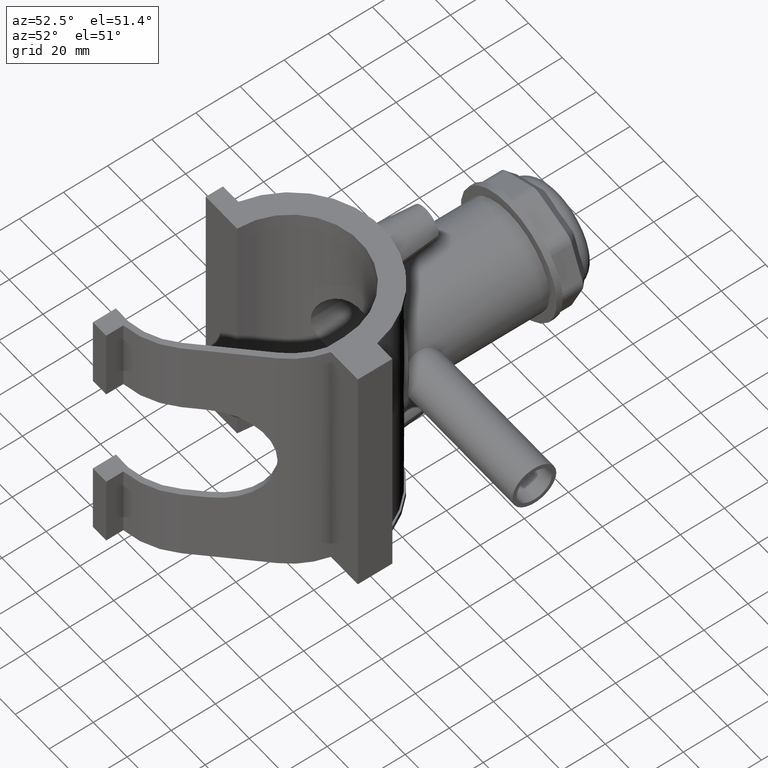
[diagram: clean part render]
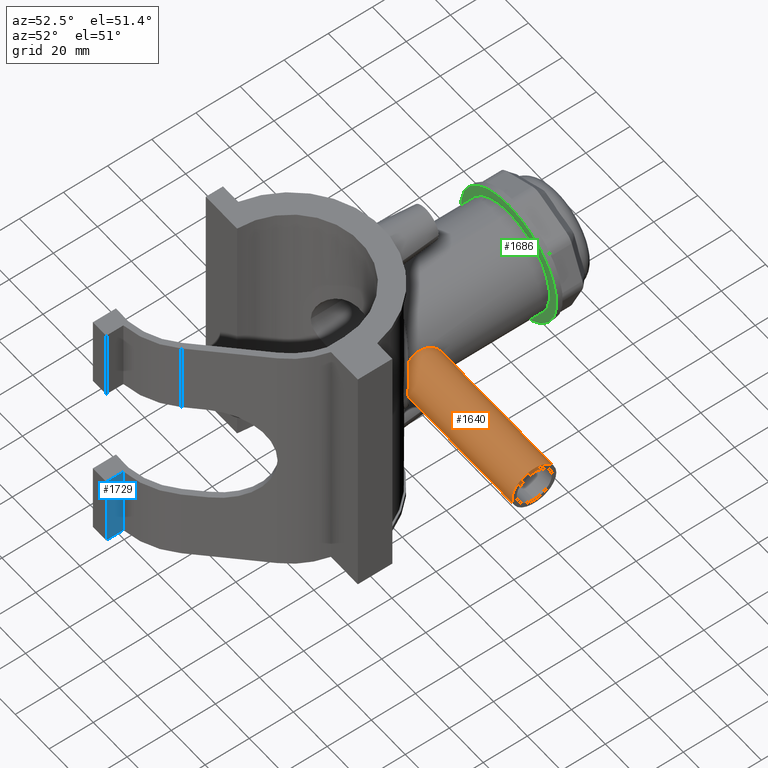
[diagram: same view with three faces highlighted in distinct colors, each labeled with its STEP entity id]
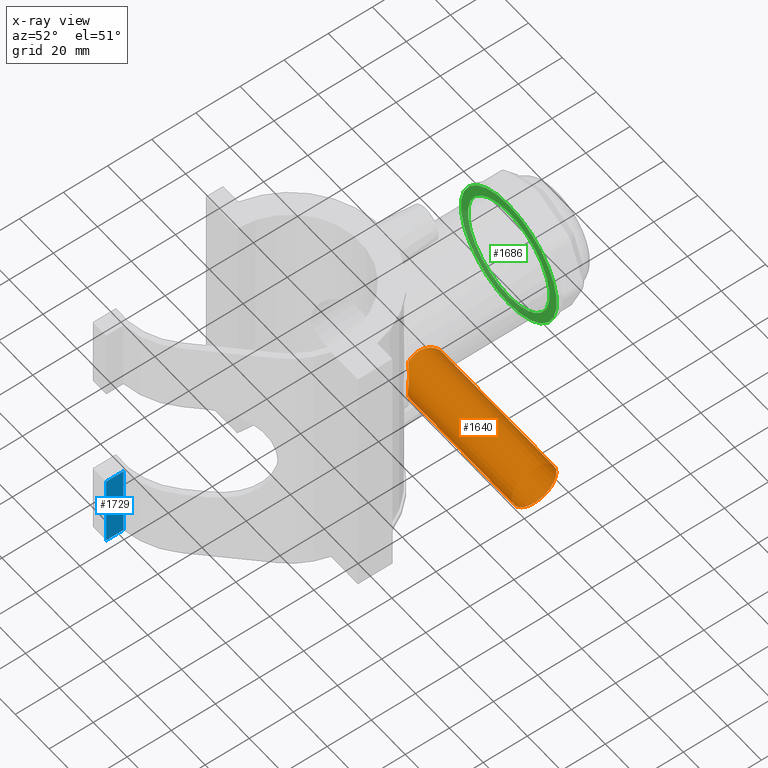
[diagram: x-ray of the same camera — body ghosted, the three highlighted faces saturated]
A machine part, auxiliary view with three faces highlighted in distinct colors.
The next image is the same camera in x-ray (body ghosted, the three faces saturated) — at least one of them is partly hidden behind the body in this view.
Their STEP definitions:

[orange] entity #1640 — the highlighted cylindrical surface (bore or boss wall) has radius 10 mm, axis along (1, 0, 0).
#380=CIRCLE('',#1751,10.);
#455=FACE_BOUND('',#589,.T.);
#480=FACE_OUTER_BOUND('',#588,.T.);
#588=EDGE_LOOP('',(#1137));
#589=EDGE_LOOP('',(#1138,#1139,#1140,#1141,#1142));
#714=B_SPLINE_CURVE_WITH_KNOTS('',3,(#2539,#2540,#2541,#2542,#2543,#2544,
#2545,#2546),.UNSPECIFIED.,.F.,.F.,(4,2,2,4),(2.6953214263511,2.99223385314256,
3.4071353460246,3.51488436503464),.UNSPECIFIED.);
#715=B_SPLINE_CURVE_WITH_KNOTS('',3,(#2548,#2549,#2550,#2551,#2552,#2553,
#2554,#2555,#2556,#2557,#2558,#2559,#2560,#2561,#2562,#2563,#2564,#2565),
 .UNSPECIFIED.,.F.,.F.,(4,2,2,2,2,2,2,2,4),(-0.252878895945213,-0.25283561976998,
-0.251909426429065,-0.250720489910901,-0.248772582027644,-0.238302451986015,
-0.094383935910594,-0.00637806346000648,0.),.UNSPECIFIED.);
#716=B_SPLINE_CURVE_WITH_KNOTS('',3,(#2567,#2568,#2569,#2570,#2571,#2572,
#2573,#2574,#2575,#2576,#2577,#2578,#2579,#2580,#2581,#2582),
 .UNSPECIFIED.,.F.,.F.,(4,2,2,2,2,2,2,4),(-0.470513911661625,-0.392260591676174,
-0.320047684020964,-0.275198712266041,-0.260640046189839,-0.255442674614148,
-0.253840698127374,-0.252878895945213),.UNSPECIFIED.);
#717=B_SPLINE_CURVE_WITH_KNOTS('',3,(#2584,#2585,#2586,#2587,#2588,#2589,
#2590,#2591),.UNSPECIFIED.,.F.,.F.,(4,2,2,4),(1.1369554596361,1.24470447864614,
1.65960597152818,1.95651839831435),.UNSPECIFIED.);
#718=B_SPLINE_CURVE_WITH_KNOTS('',3,(#2592,#2593,#2594,#2595,#2596,#2597,
#2598,#2599,#2600,#2601,#2602,#2603,#2604,#2605,#2606,#2607,#2608,#2609,
#2610,#2611,#2612,#2613,#2614,#2615,#2616,#2617,#2618),.UNSPECIFIED.,.F.,
 .F.,(4,2,2,2,2,2,2,2,2,2,3,2,4),(2.50467437356502,2.67206665897414,3.05404960074397,
3.43603254251379,3.81801548428362,4.19954494269978,4.58107440111595,4.96260385953212,
5.34413331794829,5.72611625971811,6.10809920148794,6.49008214325776,6.65747442866689),
 .UNSPECIFIED.);
#737=VERTEX_POINT('',#2535);
#738=VERTEX_POINT('',#2537);
#739=VERTEX_POINT('',#2538);
#740=VERTEX_POINT('',#2547);
#741=VERTEX_POINT('',#2566);
#742=VERTEX_POINT('',#2583);
#897=EDGE_CURVE('',#737,#737,#380,.T.);
#898=EDGE_CURVE('',#738,#739,#714,.T.);
#899=EDGE_CURVE('',#740,#738,#715,.T.);
#900=EDGE_CURVE('',#741,#740,#716,.T.);
#901=EDGE_CURVE('',#742,#741,#717,.T.);
#902=EDGE_CURVE('',#739,#742,#718,.T.);
#1137=ORIENTED_EDGE('',*,*,#897,.F.);
#1138=ORIENTED_EDGE('',*,*,#898,.F.);
#1139=ORIENTED_EDGE('',*,*,#899,.F.);
#1140=ORIENTED_EDGE('',*,*,#900,.F.);
#1141=ORIENTED_EDGE('',*,*,#901,.F.);
#1142=ORIENTED_EDGE('',*,*,#902,.F.);
#1609=CYLINDRICAL_SURFACE('',#1750,10.);
#1640=ADVANCED_FACE('',(#480,#455),#1609,.T.);
#1750=AXIS2_PLACEMENT_3D('',#2534,#1935,#1936);
#1751=AXIS2_PLACEMENT_3D('',#2536,#1937,#1938);
#1935=DIRECTION('center_axis',(1.,0.,0.));
#1936=DIRECTION('ref_axis',(0.,1.,0.));
#1937=DIRECTION('center_axis',(1.,0.,0.));
#1938=DIRECTION('ref_axis',(0.,0.,-1.));
#2534=CARTESIAN_POINT('Origin',(45.,41.5,0.));
#2535=CARTESIAN_POINT('',(90.,51.5,0.));
#2536=CARTESIAN_POINT('Origin',(90.,41.5,0.));
#2537=CARTESIAN_POINT('',(27.8940892062413,32.1816334475778,3.62878006976187));
#2538=CARTESIAN_POINT('',(22.5772091261817,36.1110422457267,8.42372449232865));
#2539=CARTESIAN_POINT('Ctrl Pts',(27.8940892062411,32.1816334475779,3.62878006976178));
#2540=CARTESIAN_POINT('Ctrl Pts',(27.4913798402836,32.5306900296965,4.52512460351329));
#2541=CARTESIAN_POINT('Ctrl Pts',(26.9395014132135,32.9936047097587,5.31644204878545));
#2542=CARTESIAN_POINT('Ctrl Pts',(25.5086707603174,34.1199656057952,6.837560737836));
#2543=CARTESIAN_POINT('Ctrl Pts',(24.5297050575093,34.8385180067351,7.51114498722243));
#2544=CARTESIAN_POINT('Ctrl Pts',(23.1621436021298,35.7402699399824,8.17795620432497));
#2545=CARTESIAN_POINT('Ctrl Pts',(22.8729725056315,35.9261261853077,8.30542707666742));
#2546=CARTESIAN_POINT('Ctrl Pts',(22.5772091261817,36.1110422457267,8.42372449232866));
#2547=CARTESIAN_POINT('',(28.349993486826,31.5000011641631,-0.00482527318278247));
#2548=CARTESIAN_POINT('Ctrl Pts',(28.349993486826,31.5000011641631,-0.00482527318278359));
#2549=CARTESIAN_POINT('Ctrl Pts',(28.3499935325212,31.5000010357335,-0.00455911281804252));
#2550=CARTESIAN_POINT('Ctrl Pts',(28.3499935744356,31.50000091793,-0.00429295246045263));
#2551=CARTESIAN_POINT('Ctrl Pts',(28.3499944287002,31.4999985169536,0.00166955101374886));
#2552=CARTESIAN_POINT('Ctrl Pts',(28.349993513088,31.5000010904095,0.00736590205134212));
#2553=CARTESIAN_POINT('Ctrl Pts',(28.3499874671916,31.5000180825927,0.0203745195788972));
#2554=CARTESIAN_POINT('Ctrl Pts',(28.3499812149854,31.5000356545329,0.0276867986141444));
#2555=CARTESIAN_POINT('Ctrl Pts',(28.3499571878352,31.5001031762046,0.0469791191617809));
#2556=CARTESIAN_POINT('Ctrl Pts',(28.3499346052053,31.5001666344168,0.0589591730210831));
#2557=CARTESIAN_POINT('Ctrl Pts',(28.3497417364125,31.5007084246473,0.135331349941041));
#2558=CARTESIAN_POINT('Ctrl Pts',(28.3493578390324,31.5017873904002,0.199726888086273));
#2559=CARTESIAN_POINT('Ctrl Pts',(28.340371337679,31.5268629325304,1.14888321426396));
#2560=CARTESIAN_POINT('Ctrl Pts',(28.2939989505415,31.6667044433242,1.93970749489138));
#2561=CARTESIAN_POINT('Ctrl Pts',(28.114921246861,31.9488224324818,2.99091647155948));
#2562=CARTESIAN_POINT('Ctrl Pts',(28.0252677447805,32.0627569031833,3.31858529706807));
#2563=CARTESIAN_POINT('Ctrl Pts',(27.9102874091216,32.1674129350263,3.59210388493646));
#2564=CARTESIAN_POINT('Ctrl Pts',(27.9022994280756,32.174517069827,3.61050587977688));
#2565=CARTESIAN_POINT('Ctrl Pts',(27.8940892062414,32.1816334475777,3.62878006976126));
#2566=CARTESIAN_POINT('',(27.8940892062334,32.1816334475916,-3.62878006981781));
#2567=CARTESIAN_POINT('Ctrl Pts',(27.8940892062414,32.1816334475777,-3.62878006976129));
#2568=CARTESIAN_POINT('Ctrl Pts',(28.0172520486859,32.0748795340562,-3.35464604180305));
#2569=CARTESIAN_POINT('Ctrl Pts',(28.1184572436525,31.9457644673648,-2.9894126866721));
#2570=CARTESIAN_POINT('Ctrl Pts',(28.2603485944744,31.7170732396267,-2.11700144885804));
#2571=CARTESIAN_POINT('Ctrl Pts',(28.297557812452,31.6322369628759,-1.68035327159155));
#2572=CARTESIAN_POINT('Ctrl Pts',(28.3344010639792,31.5431203178316,-0.967614426804215));
#2573=CARTESIAN_POINT('Ctrl Pts',(28.342717121038,31.5201664455383,-0.692088971182281));
#2574=CARTESIAN_POINT('Ctrl Pts',(28.3482289721008,31.5049494854636,-0.327078834199412));
#2575=CARTESIAN_POINT('Ctrl Pts',(28.3491310314559,31.5024209016064,-0.237548563992414));
#2576=CARTESIAN_POINT('Ctrl Pts',(28.3497723878392,31.5006224110305,-0.116058530190711));
#2577=CARTESIAN_POINT('Ctrl Pts',(28.3498862474554,31.5003025029399,-0.0840936493670432));
#2578=CARTESIAN_POINT('Ctrl Pts',(28.3499638303179,31.5000845115183,-0.0422764299768096));
#2579=CARTESIAN_POINT('Ctrl Pts',(28.3499769245991,31.500047711802,-0.0324238699603375));
#2580=CARTESIAN_POINT('Ctrl Pts',(28.3499895882328,31.5000121215111,-0.0166559716547894));
#2581=CARTESIAN_POINT('Ctrl Pts',(28.3499924712625,31.5000040184803,-0.0107406207898961));
#2582=CARTESIAN_POINT('Ctrl Pts',(28.349993486826,31.5000011641631,-0.00482527318278359));
#2583=CARTESIAN_POINT('',(22.5772091261817,36.1110422457267,-8.42372449232866));
#2584=CARTESIAN_POINT('Ctrl Pts',(22.5772091261817,36.1110422457267,-8.42372449232866));
#2585=CARTESIAN_POINT('Ctrl Pts',(22.8729725056315,35.9261261853077,-8.30542707666742));
#2586=CARTESIAN_POINT('Ctrl Pts',(23.1621436021298,35.7402699399824,-8.17795620432498));
#2587=CARTESIAN_POINT('Ctrl Pts',(24.5297050575093,34.8385180067351,-7.51114498722244));
#2588=CARTESIAN_POINT('Ctrl Pts',(25.5086707603174,34.1199656057952,-6.83756073783601));
#2589=CARTESIAN_POINT('Ctrl Pts',(26.9395014132029,32.9936047097671,-5.31644204879676));
#2590=CARTESIAN_POINT('Ctrl Pts',(27.4913798402642,32.5306900297129,-4.52512460354167));
#2591=CARTESIAN_POINT('Ctrl Pts',(27.8940892062196,32.1816334475965,-3.62878006980968));
#2592=CARTESIAN_POINT('Ctrl Pts',(22.5772091261817,36.1110422457267,8.42372449232866));
#2593=CARTESIAN_POINT('Ctrl Pts',(22.4615446540816,36.5956222135327,8.73372762425107));
#2594=CARTESIAN_POINT('Ctrl Pts',(22.3528864983165,37.1132624127736,9.00539064172879));
#2595=CARTESIAN_POINT('Ctrl Pts',(22.0473009459178,38.8809473899472,9.74236949105286));
#2596=CARTESIAN_POINT('Ctrl Pts',(21.9246324085491,40.2267235274339,10.));
#2597=CARTESIAN_POINT('Ctrl Pts',(21.9246324085491,42.7732764725661,10.));
#2598=CARTESIAN_POINT('Ctrl Pts',(22.0473009459178,44.1190526100528,9.74236949105286));
#2599=CARTESIAN_POINT('Ctrl Pts',(22.4722508253181,46.5772104384295,8.7175204080954));
#2600=CARTESIAN_POINT('Ctrl Pts',(22.7666289460222,47.6912112673548,7.95092435637613));
#2601=CARTESIAN_POINT('Ctrl Pts',(23.3064486673322,49.4498798063376,6.19225581739335));
#2602=CARTESIAN_POINT('Ctrl Pts',(23.5893387132329,50.2172648186193,5.07786507328026));
#2603=CARTESIAN_POINT('Ctrl Pts',(23.9872221219684,51.2427220693937,2.61816533819753));
#2604=CARTESIAN_POINT('Ctrl Pts',(24.0975,51.5,1.27176486138723));
#2605=CARTESIAN_POINT('Ctrl Pts',(24.0975,51.5,-1.27176486138722));
#2606=CARTESIAN_POINT('Ctrl Pts',(23.9872221219684,51.2427220693937,-2.61816533819752));
#2607=CARTESIAN_POINT('Ctrl Pts',(23.5893387132329,50.2172648186193,-5.07786507328026));
#2608=CARTESIAN_POINT('Ctrl Pts',(23.3064486673322,49.4498798063376,-6.19225581739335));
#2609=CARTESIAN_POINT('Ctrl Pts',(22.7666289460222,47.6912112673548,-7.95092435637613));
#2610=CARTESIAN_POINT('Ctrl Pts',(22.4722508253181,46.5772104384295,-8.71752040809539));
#2611=CARTESIAN_POINT('Ctrl Pts',(22.0473009459178,44.1190526100528,-9.74236949105286));
#2612=CARTESIAN_POINT('Ctrl Pts',(21.924632408549,42.7732764725661,-10.));
#2613=CARTESIAN_POINT('Ctrl Pts',(21.924632408549,41.5,-10.));
#2614=CARTESIAN_POINT('Ctrl Pts',(21.924632408549,40.2267235274339,-10.));
#2615=CARTESIAN_POINT('Ctrl Pts',(22.0473009459178,38.8809473899472,-9.74236949105286));
#2616=CARTESIAN_POINT('Ctrl Pts',(22.3528864983165,37.1132624127736,-9.00539064172879));
#2617=CARTESIAN_POINT('Ctrl Pts',(22.4615446540816,36.5956222135327,-8.73372762425107));
#2618=CARTESIAN_POINT('Ctrl Pts',(22.5772091261817,36.1110422457267,-8.42372449232866));

[blue] entity #1729 — the highlighted planar face has unit normal (1, 0, 0).
#130=LINE('',#3434,#273);
#144=LINE('',#3474,#287);
#153=LINE('',#3493,#296);
#154=LINE('',#3494,#297);
#273=VECTOR('',#2310,7.76729281260671);
#287=VECTOR('',#2352,33.8);
#296=VECTOR('',#2369,7.76729281260671);
#297=VECTOR('',#2370,33.8);
#369=PLANE('',#1904);
#569=FACE_OUTER_BOUND('',#699,.T.);
#699=EDGE_LOOP('',(#1534,#1535,#1536,#1537));
#861=VERTEX_POINT('',#3431);
#862=VERTEX_POINT('',#3433);
#874=VERTEX_POINT('',#3472);
#880=VERTEX_POINT('',#3492);
#1076=EDGE_CURVE('',#862,#861,#130,.T.);
#1097=EDGE_CURVE('',#861,#874,#144,.T.);
#1106=EDGE_CURVE('',#880,#874,#153,.T.);
#1107=EDGE_CURVE('',#862,#880,#154,.T.);
#1534=ORIENTED_EDGE('',*,*,#1076,.T.);
#1535=ORIENTED_EDGE('',*,*,#1097,.T.);
#1536=ORIENTED_EDGE('',*,*,#1106,.F.);
#1537=ORIENTED_EDGE('',*,*,#1107,.F.);
#1729=ADVANCED_FACE('',(#569),#369,.T.);
#1904=AXIS2_PLACEMENT_3D('',#3491,#2367,#2368);
#2310=DIRECTION('',(0.,-1.,7.47663074675932E-16));
#2352=DIRECTION('',(0.,0.,-1.));
#2367=DIRECTION('center_axis',(1.,0.,0.));
#2368=DIRECTION('ref_axis',(0.,-1.,0.));
#2369=DIRECTION('',(0.,-1.,0.));
#2370=DIRECTION('',(0.,0.,-1.));
#3431=CARTESIAN_POINT('',(-21.0749478174158,-67.2819225308697,-25.2));
#3433=CARTESIAN_POINT('',(-21.0749478174158,-59.514629718263,-25.2));
#3434=CARTESIAN_POINT('',(-21.0749478174158,-50.113188079745,-25.2));
#3472=CARTESIAN_POINT('',(-21.0749478174158,-67.2819225308697,-59.));
#3474=CARTESIAN_POINT('',(-21.0749478174158,-67.2819225308697,59.));
#3491=CARTESIAN_POINT('Origin',(-21.0749478174158,-59.514629718263,59.));
#3492=CARTESIAN_POINT('',(-21.0749478174158,-59.514629718263,-59.));
#3493=CARTESIAN_POINT('',(-21.0749478174158,-46.5652954918489,-59.));
#3494=CARTESIAN_POINT('',(-21.0749478174158,-59.514629718263,59.));

[green] entity #1686 — the highlighted planar face has unit normal (0, -1, -0).
#343=PLANE('',#1832);
#381=CIRCLE('',#1754,24.0975);
#416=CIRCLE('',#1833,28.35);
#460=FACE_BOUND('',#640,.T.);
#526=FACE_OUTER_BOUND('',#639,.T.);
#639=EDGE_LOOP('',(#1359));
#640=EDGE_LOOP('',(#1360));
#743=VERTEX_POINT('',#2683);
#810=VERTEX_POINT('',#2981);
#904=EDGE_CURVE('',#743,#743,#381,.T.);
#1011=EDGE_CURVE('',#810,#810,#416,.T.);
#1359=ORIENTED_EDGE('',*,*,#1011,.F.);
#1360=ORIENTED_EDGE('',*,*,#904,.T.);
#1686=ADVANCED_FACE('',(#526,#460),#343,.T.);
#1754=AXIS2_PLACEMENT_3D('',#2684,#1943,#1944);
#1832=AXIS2_PLACEMENT_3D('',#2980,#2163,#2164);
#1833=AXIS2_PLACEMENT_3D('',#2982,#2165,#2166);
#1943=DIRECTION('center_axis',(0.,1.,3.06161699786838E-16));
#1944=DIRECTION('ref_axis',(1.,0.,0.));
#2163=DIRECTION('center_axis',(0.,-1.,-3.06161699786838E-16));
#2164=DIRECTION('ref_axis',(0.,0.,-1.));
#2165=DIRECTION('center_axis',(0.,1.,3.06161699786838E-16));
#2166=DIRECTION('ref_axis',(1.,0.,0.));
#2683=CARTESIAN_POINT('',(0.,99.,24.0975));
#2684=CARTESIAN_POINT('Origin',(0.,99.,2.06659147356116E-14));
#2980=CARTESIAN_POINT('Origin',(0.,99.,28.35));
#2981=CARTESIAN_POINT('',(0.,99.,28.35));
#2982=CARTESIAN_POINT('Origin',(0.,99.,2.06659147356116E-14));